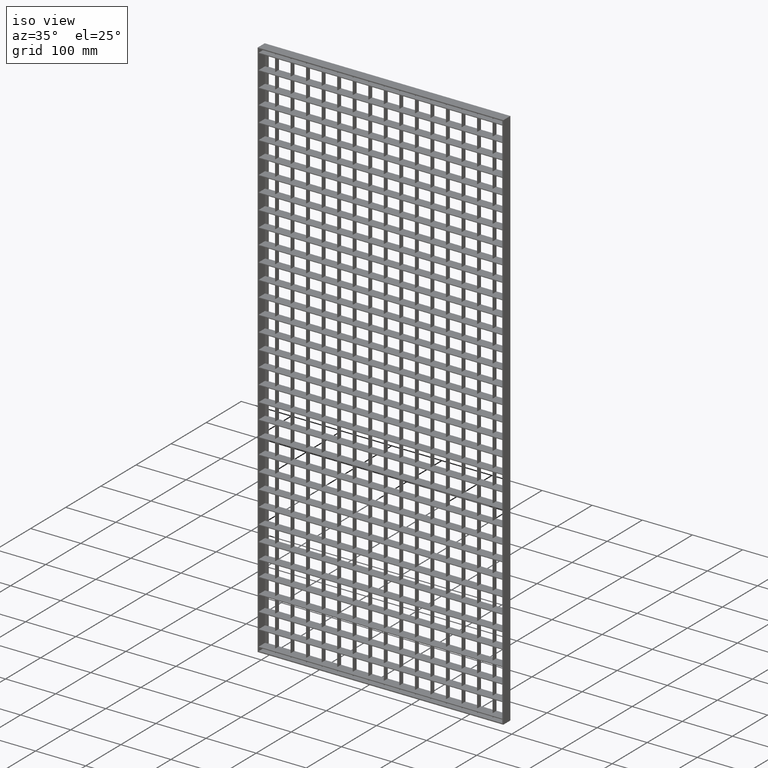
[diagram: clean part render]
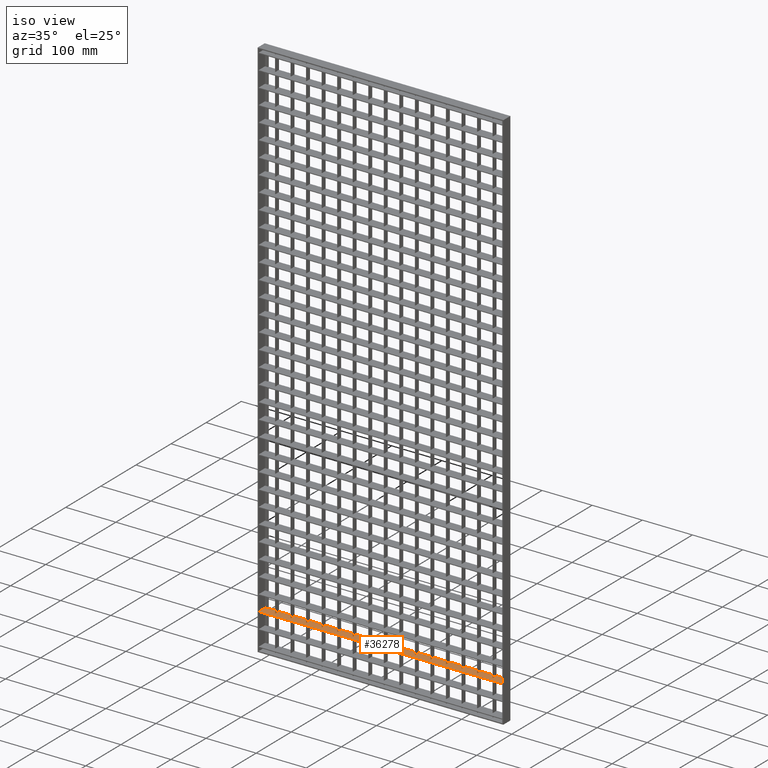
[diagram: same view with one face highlighted and labeled with its STEP entity id]
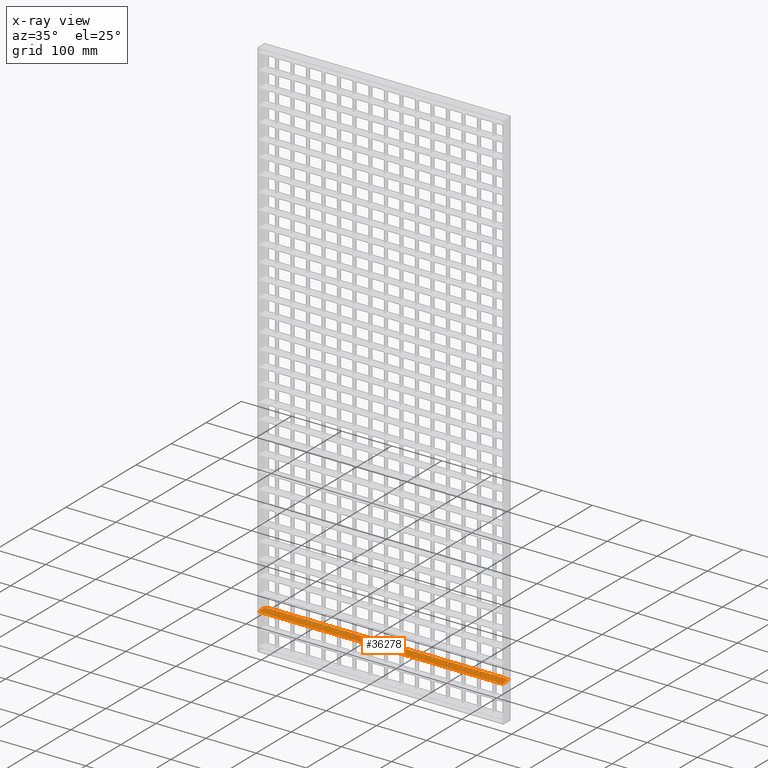
[diagram: x-ray of the same camera — body ghosted, the highlighted face saturated]
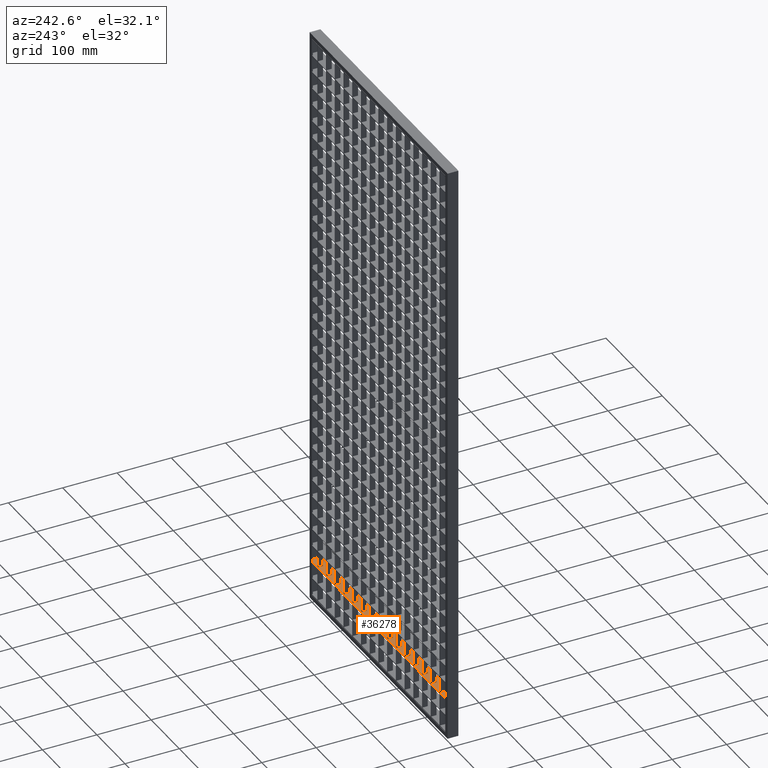
[diagram: same view with one face highlighted and labeled with its STEP entity id]
A machine part, iso view. The second image highlights one B-rep face of the part: STEP entity #36278.
The next image is the same camera in x-ray: the body ghosted, the highlighted face saturated — about 0% of this face is hidden behind the body in this view.
A second angle (auxiliary view) of the same face is appended — the face is thin or edge-on in the first view.
In plain terms, the highlighted planar face has unit normal (0, 0, -1).
Its self-contained STEP definition (entity closure, byte-faithful):
#47 = LINE ( 'NONE', #2167, #4908 ) ;
#529 = VERTEX_POINT ( 'NONE', #3983 ) ;
#575 = DIRECTION ( 'NONE',  ( 0.0000000000000000000, 1.000000000000000000, 0.0000000000000000000 ) ) ;
#647 = EDGE_CURVE ( 'NONE', #66023, #45978, #47502, .T. ) ;
#792 = ORIENTED_EDGE ( 'NONE', *, *, #23037, .F. ) ;
#1019 = VERTEX_POINT ( 'NONE', #63956 ) ;
#1507 = ORIENTED_EDGE ( 'NONE', *, *, #73051, .T. ) ;
#1782 = ORIENTED_EDGE ( 'NONE', *, *, #45331, .T. ) ;
#1841 = CARTESIAN_POINT ( 'NONE',  ( 488.0000000000000000, -9.999999999999847200, -1016.750000000000200 ) ) ;
#1892 = VECTOR ( 'NONE', #20322, 1000.000000000000000 ) ;
#1954 = CARTESIAN_POINT ( 'NONE',  ( 508.0561711201316900, 10.00000000000015500, -1016.750000000000200 ) ) ;
#2028 = DIRECTION ( 'NONE',  ( 0.0000000000000000000, -1.000000000000000000, 0.0000000000000000000 ) ) ;
#2147 = LINE ( 'NONE', #51180, #49362 ) ;
#2167 = CARTESIAN_POINT ( 'NONE',  ( 508.0561711201316900, 10.00000000000015500, -1016.750000000000200 ) ) ;
#2275 = DIRECTION ( 'NONE',  ( -1.000000000000000000, -3.061616997868382600E-016, 0.0000000000000000000 ) ) ;
#2305 = ORIENTED_EDGE ( 'NONE', *, *, #15256, .F. ) ;
#2312 = EDGE_CURVE ( 'NONE', #66023, #3014, #76289, .T. ) ;
#3014 = VERTEX_POINT ( 'NONE', #17201 ) ;
#3084 = VECTOR ( 'NONE', #4418, 1000.000000000000000 ) ;
#3499 = CARTESIAN_POINT ( 'NONE',  ( 307.5000000000000000, -9.999999999999847200, -1016.750000000000200 ) ) ;
#3504 = CARTESIAN_POINT ( 'NONE',  ( 8.000000000000007100, 10.00000000000000200, -1016.750000000000200 ) ) ;
#3670 = LINE ( 'NONE', #33377, #40300 ) ;
#3701 = VECTOR ( 'NONE', #16097, 1000.000000000000000 ) ;
#3827 = CARTESIAN_POINT ( 'NONE',  ( 244.5000000000000000, 2.575921507436452900E-015, -1016.750000000000200 ) ) ;
#3922 = DIRECTION ( 'NONE',  ( 0.0000000000000000000, 1.000000000000000000, 0.0000000000000000000 ) ) ;
#3978 = VERTEX_POINT ( 'NONE', #48672 ) ;
#3983 = CARTESIAN_POINT ( 'NONE',  ( 151.5000000000000000, 10.00000000000000400, -1016.750000000000200 ) ) ;
#4418 = DIRECTION ( 'NONE',  ( 0.0000000000000000000, -1.000000000000000000, 0.0000000000000000000 ) ) ;
#4428 = EDGE_CURVE ( 'NONE', #26187, #13806, #70304, .T. ) ;
#4447 = CARTESIAN_POINT ( 'NONE',  ( 399.4999999999999400, 3.964497668408261800E-015, -1016.750000000000200 ) ) ;
#4469 = ORIENTED_EDGE ( 'NONE', *, *, #47041, .T. ) ;
#4737 = VERTEX_POINT ( 'NONE', #77063 ) ;
#4798 = VERTEX_POINT ( 'NONE', #28491 ) ;
#4842 = VERTEX_POINT ( 'NONE', #72968 ) ;
#4885 = EDGE_CURVE ( 'NONE', #35848, #72989, #47038, .T. ) ;
#4908 = VECTOR ( 'NONE', #14782, 1000.000000000000000 ) ;
#4982 = CARTESIAN_POINT ( 'NONE',  ( 508.0561711201316900, 10.00000000000015500, -1016.750000000000200 ) ) ;
#5101 = CARTESIAN_POINT ( 'NONE',  ( 399.4999999999999400, 10.00000000000012100, -1016.750000000000200 ) ) ;
#5118 = CARTESIAN_POINT ( 'NONE',  ( 152.4999999999999700, -9.999999999999847200, -1016.750000000000200 ) ) ;
#5173 = ORIENTED_EDGE ( 'NONE', *, *, #35917, .T. ) ;
#5180 = CARTESIAN_POINT ( 'NONE',  ( 58.49999999999994300, 2.875720054319178000E-015, -1016.750000000000200 ) ) ;
#5485 = LINE ( 'NONE', #71455, #78804 ) ;
#5492 = LINE ( 'NONE', #74429, #30548 ) ;
#5493 = DIRECTION ( 'NONE',  ( 0.0000000000000000000, 1.000000000000000000, 0.0000000000000000000 ) ) ;
#5738 = DIRECTION ( 'NONE',  ( -1.000000000000000000, -3.061616997868382600E-016, 0.0000000000000000000 ) ) ;
#5740 = VERTEX_POINT ( 'NONE', #7365 ) ;
#5847 = EDGE_CURVE ( 'NONE', #50494, #70728, #27541, .T. ) ;
#5863 = ORIENTED_EDGE ( 'NONE', *, *, #29194, .F. ) ;
#6335 = CARTESIAN_POINT ( 'NONE',  ( 183.5000000000000600, 10.00000000000005500, -1016.750000000000200 ) ) ;
#6500 = CARTESIAN_POINT ( 'NONE',  ( 59.50000000000000000, -9.999999999999847200, -1016.750000000000200 ) ) ;
#6604 = LINE ( 'NONE', #51215, #57693 ) ;
#6652 = CARTESIAN_POINT ( 'NONE',  ( 369.5000000000000600, 2.521952918628941400E-015, -1016.750000000000200 ) ) ;
#6712 = ORIENTED_EDGE ( 'NONE', *, *, #30509, .T. ) ;
#6806 = DIRECTION ( 'NONE',  ( 1.000000000000000000, -3.061616997868381200E-016, 0.0000000000000000000 ) ) ;
#6955 = DIRECTION ( 'NONE',  ( 0.0000000000000000000, 1.000000000000000000, 0.0000000000000000000 ) ) ;
#7078 = LINE ( 'NONE', #28126, #68729 ) ;
#7341 = LINE ( 'NONE', #17234, #42996 ) ;
#7365 = CARTESIAN_POINT ( 'NONE',  ( 306.5000000000000000, 10.00000000000009200, -1016.750000000000200 ) ) ;
#7568 = LINE ( 'NONE', #27009, #71232 ) ;
#7873 = VECTOR ( 'NONE', #15431, 1000.000000000000000 ) ;
#8026 = ORIENTED_EDGE ( 'NONE', *, *, #17497, .T. ) ;
#8042 = LINE ( 'NONE', #12573, #13831 ) ;
#8251 = ORIENTED_EDGE ( 'NONE', *, *, #4885, .T. ) ;
#8373 = VECTOR ( 'NONE', #15385, 1000.000000000000000 ) ;
#8689 = CARTESIAN_POINT ( 'NONE',  ( 244.5000000000000000, -9.999999999999847200, -1016.750000000000200 ) ) ;
#8844 = ORIENTED_EDGE ( 'NONE', *, *, #21264, .F. ) ;
#8872 = VECTOR ( 'NONE', #6806, 1000.000000000000000 ) ;
#9142 = ORIENTED_EDGE ( 'NONE', *, *, #66843, .T. ) ;
#9171 = VERTEX_POINT ( 'NONE', #9367 ) ;
#9367 = CARTESIAN_POINT ( 'NONE',  ( 89.50000000000000000, 10.00000000000000400, -1016.750000000000200 ) ) ;
#9686 = VECTOR ( 'NONE', #50323, 1000.000000000000000 ) ;
#9685 = VECTOR ( 'NONE', #64912, 1000.000000000000000 ) ;
#9751 = VECTOR ( 'NONE', #27449, 1000.000000000000000 ) ;
#9806 = CARTESIAN_POINT ( 'NONE',  ( 275.4999999999999400, 10.00000000000008300, -1016.750000000000200 ) ) ;
#9867 = ORIENTED_EDGE ( 'NONE', *, *, #51762, .T. ) ;
#10002 = VERTEX_POINT ( 'NONE', #15333 ) ;
#10037 = ORIENTED_EDGE ( 'NONE', *, *, #75055, .T. ) ;
#10214 = EDGE_CURVE ( 'NONE', #44588, #39054, #54639, .T. ) ;
#10591 = CARTESIAN_POINT ( 'NONE',  ( 508.0561711201316900, 10.00000000000015500, -1016.750000000000200 ) ) ;
#10777 = ORIENTED_EDGE ( 'NONE', *, *, #33579, .T. ) ;
#10828 = VERTEX_POINT ( 'NONE', #43503 ) ;
#10880 = CARTESIAN_POINT ( 'NONE',  ( 508.0561711201316900, 10.00000000000015500, -1016.750000000000200 ) ) ;
#11002 = VECTOR ( 'NONE', #2275, 1000.000000000000000 ) ;
#11036 = LINE ( 'NONE', #29821, #29368 ) ;
#11109 = EDGE_LOOP ( 'NONE', ( #41373, #59631, #18977, #36443, #8844, #52308, #792, #4469, #34542, #48163, #17365, #78879, #27890, #75272, #41065, #23584, #38828, #52946, #79438, #10777, #61453, #56363, #67982, #53601, #54218, #68046, #44772, #76162, #38912, #23063, #45372, #70309, #27670, #77019, #55527, #66277, #1507, #69324, #10037, #29420, #49395, #9867, #56711, #6712, #1782, #8251, #49460, #16900, #59021, #65242, #50529, #9142, #76958, #40384, #79206, #59903, #79100, #5173, #19547, #30981, #5863, #40531, #2305, #71595, #8026, #53399, #64926, #38168 ) ) ;
#11161 = DIRECTION ( 'NONE',  ( -1.000000000000000000, -3.061616997868382600E-016, 0.0000000000000000000 ) ) ;
#11649 = CARTESIAN_POINT ( 'NONE',  ( 245.5000000000000000, -9.999999999999847200, -1016.750000000000200 ) ) ;
#11761 = VERTEX_POINT ( 'NONE', #65634 ) ;
#12103 = EDGE_CURVE ( 'NONE', #58737, #50494, #34974, .T. ) ;
#12327 = VERTEX_POINT ( 'NONE', #15423 ) ;
#12573 = CARTESIAN_POINT ( 'NONE',  ( 151.4999999999999700, -9.999999999999847200, -1016.750000000000200 ) ) ;
#12657 = EDGE_CURVE ( 'NONE', #45978, #58737, #41619, .T. ) ;
#12856 = VECTOR ( 'NONE', #2028, 1000.000000000000000 ) ;
#12998 = CARTESIAN_POINT ( 'NONE',  ( 2.000000000000003600, -10.00000000000000000, -1016.750000000000200 ) ) ;
#13081 = VECTOR ( 'NONE', #5493, 1000.000000000000000 ) ;
#13384 = VERTEX_POINT ( 'NONE', #19242 ) ;
#13667 = LINE ( 'NONE', #40290, #64798 ) ;
#13806 = VERTEX_POINT ( 'NONE', #42626 ) ;
#13831 = VECTOR ( 'NONE', #43041, 1000.000000000000000 ) ;
#13993 = EDGE_CURVE ( 'NONE', #12327, #55211, #71273, .T. ) ;
#14005 = CARTESIAN_POINT ( 'NONE',  ( 7.999999999999996400, 8.000000000000001800, -1016.750000000000200 ) ) ;
#14044 = EDGE_CURVE ( 'NONE', #37266, #37686, #6604, .T. ) ;
#14136 = CARTESIAN_POINT ( 'NONE',  ( 183.5000000000000000, -9.999999999999847200, -1016.750000000000200 ) ) ;
#14445 = LINE ( 'NONE', #68130, #43370 ) ;
#14782 = DIRECTION ( 'NONE',  ( -1.000000000000000000, -3.061616997868382600E-016, 0.0000000000000000000 ) ) ;
#15256 = EDGE_CURVE ( 'NONE', #60735, #76160, #43040, .T. ) ;
#15277 = VECTOR ( 'NONE', #61649, 1000.000000000000000 ) ;
#15333 = CARTESIAN_POINT ( 'NONE',  ( 338.5000000000000000, 10.00000000000010300, -1016.750000000000200 ) ) ;
#15385 = DIRECTION ( 'NONE',  ( 0.0000000000000000000, 1.000000000000000000, 0.0000000000000000000 ) ) ;
#15423 = CARTESIAN_POINT ( 'NONE',  ( 482.0000000000000600, 8.000000000000001800, -1016.750000000000200 ) ) ;
#15431 = DIRECTION ( 'NONE',  ( 1.000000000000000000, -3.061616997868381200E-016, 0.0000000000000000000 ) ) ;
#15518 = CARTESIAN_POINT ( 'NONE',  ( 59.50000000000005000, 10.00000000000001800, -1016.750000000000200 ) ) ;
#15955 = CARTESIAN_POINT ( 'NONE',  ( 213.5000000000000000, 10.00000000000000400, -1016.750000000000200 ) ) ;
#16097 = DIRECTION ( 'NONE',  ( 0.0000000000000000000, -1.000000000000000000, 0.0000000000000000000 ) ) ;
#16208 = VERTEX_POINT ( 'NONE', #6335 ) ;
#16231 = EDGE_CURVE ( 'NONE', #66929, #49276, #37934, .T. ) ;
#16561 = VERTEX_POINT ( 'NONE', #41563 ) ;
#16765 = LINE ( 'NONE', #39048, #38978 ) ;
#16783 = EDGE_CURVE ( 'NONE', #29604, #62152, #36863, .T. ) ;
#16795 = VECTOR ( 'NONE', #62865, 1000.000000000000000 ) ;
#16900 = ORIENTED_EDGE ( 'NONE', *, *, #37016, .T. ) ;
#16905 = DIRECTION ( 'NONE',  ( -1.000000000000000000, -3.061616997868382600E-016, 0.0000000000000000000 ) ) ;
#17076 = DIRECTION ( 'NONE',  ( 1.000000000000000000, -3.061616997868381200E-016, 0.0000000000000000000 ) ) ;
#17150 = VERTEX_POINT ( 'NONE', #77123 ) ;
#17160 = CARTESIAN_POINT ( 'NONE',  ( 508.0561711201316900, -9.999999999999847200, -1016.750000000000200 ) ) ;
#17201 = CARTESIAN_POINT ( 'NONE',  ( 275.4999999999999400, 3.964497668408261800E-015, -1016.750000000000200 ) ) ;
#17234 = CARTESIAN_POINT ( 'NONE',  ( 182.5000000000000000, -9.999999999999847200, -1016.750000000000200 ) ) ;
#17365 = ORIENTED_EDGE ( 'NONE', *, *, #17493, .F. ) ;
#17493 = EDGE_CURVE ( 'NONE', #68967, #48850, #75325, .T. ) ;
#17497 = EDGE_CURVE ( 'NONE', #1019, #55211, #58790, .T. ) ;
#18129 = VECTOR ( 'NONE', #44971, 1000.000000000000000 ) ;
#18361 = DIRECTION ( 'NONE',  ( 1.000000000000000000, 0.0000000000000000000, 0.0000000000000000000 ) ) ;
#18558 = EDGE_CURVE ( 'NONE', #71690, #20576, #31653, .T. ) ;
#18731 = VECTOR ( 'NONE', #24313, 1000.000000000000000 ) ;
#18806 = LINE ( 'NONE', #65091, #20729 ) ;
#18977 = ORIENTED_EDGE ( 'NONE', *, *, #51773, .F. ) ;
#19134 = LINE ( 'NONE', #57647, #34552 ) ;
#19242 = CARTESIAN_POINT ( 'NONE',  ( 27.49999999999996800, 3.793048216788036000E-015, -1016.750000000000200 ) ) ;
#19307 = VECTOR ( 'NONE', #70713, 1000.000000000000000 ) ;
#19425 = VECTOR ( 'NONE', #36562, 1000.000000000000000 ) ;
#19519 = CARTESIAN_POINT ( 'NONE',  ( 2.000000000000003600, -10.00000000000000000, -1016.750000000000200 ) ) ;
#19522 = LINE ( 'NONE', #3499, #59040 ) ;
#19547 = ORIENTED_EDGE ( 'NONE', *, *, #68988, .T. ) ;
#19653 = DIRECTION ( 'NONE',  ( -1.000000000000000000, -3.061616997868382600E-016, 0.0000000000000000000 ) ) ;
#19777 = CARTESIAN_POINT ( 'NONE',  ( 307.5000000000000000, 2.422020069668045200E-015, -1016.750000000000200 ) ) ;
#19839 = EDGE_CURVE ( 'NONE', #25098, #47969, #64277, .T. ) ;
#19863 = VECTOR ( 'NONE', #47922, 1000.000000000000000 ) ;
#19955 = EDGE_CURVE ( 'NONE', #38211, #76931, #48885, .T. ) ;
#19984 = CARTESIAN_POINT ( 'NONE',  ( 487.9999999999997700, 8.000000000000001800, -1016.750000000000200 ) ) ;
#19987 = DIRECTION ( 'NONE',  ( 0.0000000000000000000, 1.000000000000000000, 0.0000000000000000000 ) ) ;
#20172 = EDGE_CURVE ( 'NONE', #37686, #76314, #50746, .T. ) ;
#20322 = DIRECTION ( 'NONE',  ( -1.000000000000000000, -3.061616997868382600E-016, 0.0000000000000000000 ) ) ;
#20563 = CARTESIAN_POINT ( 'NONE',  ( 28.49999999999997200, -9.999999999999847200, -1016.750000000000200 ) ) ;
#20576 = VERTEX_POINT ( 'NONE', #33357 ) ;
#20729 = VECTOR ( 'NONE', #28154, 1000.000000000000000 ) ;
#20842 = VERTEX_POINT ( 'NONE', #47837 ) ;
#20850 = VERTEX_POINT ( 'NONE', #23065 ) ;
#21137 = CARTESIAN_POINT ( 'NONE',  ( 461.5000000000000000, 10.00000000000014000, -1016.750000000000200 ) ) ;
#21264 = EDGE_CURVE ( 'NONE', #34237, #13806, #61790, .T. ) ;
#21400 = DIRECTION ( 'NONE',  ( -1.000000000000000000, -3.061616997868381200E-016, 0.0000000000000000000 ) ) ;
#21420 = LINE ( 'NONE', #6500, #79295 ) ;
#21503 = EDGE_CURVE ( 'NONE', #16561, #60096, #5485, .T. ) ;
#22210 = CARTESIAN_POINT ( 'NONE',  ( 508.0561711201316900, -1.040834085586084300E-014, -1016.750000000000200 ) ) ;
#23037 = EDGE_CURVE ( 'NONE', #63888, #54212, #16765, .T. ) ;
#23063 = ORIENTED_EDGE ( 'NONE', *, *, #12103, .T. ) ;
#23065 = CARTESIAN_POINT ( 'NONE',  ( 307.5000000000000000, 10.00000000000009400, -1016.750000000000200 ) ) ;
#23376 = CARTESIAN_POINT ( 'NONE',  ( 508.0561711201316900, -2.081668171172168500E-014, -1016.750000000000200 ) ) ;
#23401 = EDGE_CURVE ( 'NONE', #47751, #529, #8042, .T. ) ;
#23536 = CARTESIAN_POINT ( 'NONE',  ( 213.4999999999999700, 3.493249669905298200E-015, -1016.750000000000200 ) ) ;
#23584 = ORIENTED_EDGE ( 'NONE', *, *, #37132, .T. ) ;
#23721 = CARTESIAN_POINT ( 'NONE',  ( 27.49999999999999600, 10.00000000000000400, -1016.750000000000200 ) ) ;
#23877 = EDGE_CURVE ( 'NONE', #39054, #66929, #13667, .T. ) ;
#24126 = EDGE_CURVE ( 'NONE', #48850, #16561, #54174, .T. ) ;
#24236 = CARTESIAN_POINT ( 'NONE',  ( 58.50000000000000000, 10.00000000000000400, -1016.750000000000200 ) ) ;
#24313 = DIRECTION ( 'NONE',  ( -1.000000000000000000, -3.061616997868381200E-016, 0.0000000000000000000 ) ) ;
#24453 = EDGE_CURVE ( 'NONE', #25903, #34955, #52186, .T. ) ;
#24886 = CARTESIAN_POINT ( 'NONE',  ( 338.5000000000000000, -9.999999999999847200, -1016.750000000000200 ) ) ;
#25098 = VERTEX_POINT ( 'NONE', #23721 ) ;
#25641 = CARTESIAN_POINT ( 'NONE',  ( 245.5000000000000000, 10.00000000000007500, -1016.750000000000200 ) ) ;
#25667 = DIRECTION ( 'NONE',  ( -1.000000000000000000, -3.061616997868381200E-016, 0.0000000000000000000 ) ) ;
#25903 = VERTEX_POINT ( 'NONE', #6652 ) ;
#26004 = LINE ( 'NONE', #51641, #31827 ) ;
#26187 = VERTEX_POINT ( 'NONE', #21137 ) ;
#26300 = LINE ( 'NONE', #79049, #70672 ) ;
#26422 = DIRECTION ( 'NONE',  ( -1.000000000000000000, -3.061616997868382600E-016, 0.0000000000000000000 ) ) ;
#26593 = EDGE_CURVE ( 'NONE', #20842, #71690, #3670, .T. ) ;
#26657 = CARTESIAN_POINT ( 'NONE',  ( 245.5000000000000000, 3.469446951953614200E-015, -1016.750000000000200 ) ) ;
#26743 = VERTEX_POINT ( 'NONE', #47086 ) ;
#27009 = CARTESIAN_POINT ( 'NONE',  ( 508.0561711201316900, -3.989863994746656300E-014, -1016.750000000000200 ) ) ;
#27113 = CARTESIAN_POINT ( 'NONE',  ( 89.49999999999997200, 3.693115367827127200E-015, -1016.750000000000200 ) ) ;
#27449 = DIRECTION ( 'NONE',  ( 0.0000000000000000000, 1.000000000000000000, 0.0000000000000000000 ) ) ;
#27529 = CARTESIAN_POINT ( 'NONE',  ( 275.4999999999999400, -9.999999999999847200, -1016.750000000000200 ) ) ;
#27541 = LINE ( 'NONE', #8689, #78697 ) ;
#27670 = ORIENTED_EDGE ( 'NONE', *, *, #32757, .T. ) ;
#27746 = DIRECTION ( 'NONE',  ( 0.0000000000000000000, 1.000000000000000000, 0.0000000000000000000 ) ) ;
#27890 = ORIENTED_EDGE ( 'NONE', *, *, #24453, .F. ) ;
#28096 = LINE ( 'NONE', #35867, #76406 ) ;
#28126 = CARTESIAN_POINT ( 'NONE',  ( 508.0561711201316900, 1.318389841742373400E-013, -1016.750000000000200 ) ) ;
#28154 = DIRECTION ( 'NONE',  ( 0.0000000000000000000, -1.000000000000000000, 0.0000000000000000000 ) ) ;
#28491 = CARTESIAN_POINT ( 'NONE',  ( 121.5000000000000000, 10.00000000000003700, -1016.750000000000200 ) ) ;
#29194 = EDGE_CURVE ( 'NONE', #4737, #47969, #76539, .T. ) ;
#29368 = VECTOR ( 'NONE', #60753, 1000.000000000000000 ) ;
#29420 = ORIENTED_EDGE ( 'NONE', *, *, #14044, .T. ) ;
#29446 = VECTOR ( 'NONE', #66254, 1000.000000000000000 ) ;
#29601 = LINE ( 'NONE', #24886, #35405 ) ;
#29604 = VERTEX_POINT ( 'NONE', #54646 ) ;
#29752 = VERTEX_POINT ( 'NONE', #27113 ) ;
#29821 = CARTESIAN_POINT ( 'NONE',  ( 508.0561711201316900, 10.00000000000015500, -1016.750000000000200 ) ) ;
#30109 = CARTESIAN_POINT ( 'NONE',  ( 152.5000000000000300, 10.00000000000004600, -1016.750000000000200 ) ) ;
#30302 = EDGE_CURVE ( 'NONE', #75623, #26743, #34826, .T. ) ;
#30509 = EDGE_CURVE ( 'NONE', #529, #4798, #47, .T. ) ;
#30548 = VECTOR ( 'NONE', #575, 1000.000000000000000 ) ;
#30716 = AXIS2_PLACEMENT_3D ( 'NONE', #17160, #53830, #36848 ) ;
#30789 = LINE ( 'NONE', #44598, #1892 ) ;
#30973 = LINE ( 'NONE', #35251, #35759 ) ;
#30981 = ORIENTED_EDGE ( 'NONE', *, *, #19839, .T. ) ;
#31039 = CARTESIAN_POINT ( 'NONE',  ( 508.0561711201316900, -5.898059818321144100E-014, -1016.750000000000200 ) ) ;
#31495 = VECTOR ( 'NONE', #26422, 1000.000000000000000 ) ;
#31653 = LINE ( 'NONE', #43349, #15277 ) ;
#31733 = CARTESIAN_POINT ( 'NONE',  ( 58.50000000000000000, -9.999999999999847200, -1016.750000000000200 ) ) ;
#31775 = EDGE_CURVE ( 'NONE', #3014, #75623, #52276, .T. ) ;
#31827 = VECTOR ( 'NONE', #21400, 1000.000000000000000 ) ;
#32743 = DIRECTION ( 'NONE',  ( 0.0000000000000000000, -1.000000000000000000, 0.0000000000000000000 ) ) ;
#32757 = EDGE_CURVE ( 'NONE', #43764, #65768, #14445, .T. ) ;
#32798 = CARTESIAN_POINT ( 'NONE',  ( 399.4999999999999400, -9.999999999999847200, -1016.750000000000200 ) ) ;
#33205 = LINE ( 'NONE', #56921, #16795 ) ;
#33222 = EDGE_CURVE ( 'NONE', #70728, #43764, #74280, .T. ) ;
#33357 = CARTESIAN_POINT ( 'NONE',  ( 338.5000000000000000, 3.339348232136890500E-015, -1016.750000000000200 ) ) ;
#33377 = CARTESIAN_POINT ( 'NONE',  ( 337.5000000000000000, -9.999999999999847200, -1016.750000000000200 ) ) ;
#33480 = CARTESIAN_POINT ( 'NONE',  ( 368.5000000000000600, -9.999999999999847200, -1016.750000000000200 ) ) ;
#33486 = CARTESIAN_POINT ( 'NONE',  ( 368.5000000000000600, 3.964497668408261800E-015, -1016.750000000000200 ) ) ;
#33579 = EDGE_CURVE ( 'NONE', #20842, #20850, #30789, .T. ) ;
#34237 = VERTEX_POINT ( 'NONE', #39697 ) ;
#34542 = ORIENTED_EDGE ( 'NONE', *, *, #21503, .F. ) ;
#34549 = CARTESIAN_POINT ( 'NONE',  ( 400.4999999999999400, 10.00000000000012100, -1016.750000000000200 ) ) ;
#34552 = VECTOR ( 'NONE', #19653, 1000.000000000000000 ) ;
#34597 = DIRECTION ( 'NONE',  ( -1.000000000000000000, -3.061616997868381200E-016, 0.0000000000000000000 ) ) ;
#34679 = EDGE_CURVE ( 'NONE', #10828, #62345, #5492, .T. ) ;
#34826 = LINE ( 'NONE', #46490, #9751 ) ;
#34955 = VERTEX_POINT ( 'NONE', #70888 ) ;
#34974 = LINE ( 'NONE', #55885, #50422 ) ;
#35251 = CARTESIAN_POINT ( 'NONE',  ( 508.0561711201316900, 1.405126015541213700E-013, -1016.750000000000200 ) ) ;
#35405 = VECTOR ( 'NONE', #19987, 1000.000000000000000 ) ;
#35759 = VECTOR ( 'NONE', #47615, 1000.000000000000000 ) ;
#35848 = VERTEX_POINT ( 'NONE', #43906 ) ;
#35867 = CARTESIAN_POINT ( 'NONE',  ( 508.0561711201316900, 10.00000000000015500, -1016.750000000000200 ) ) ;
#35917 = EDGE_CURVE ( 'NONE', #49276, #13384, #2147, .T. ) ;
#36159 = EDGE_CURVE ( 'NONE', #48079, #62345, #46380, .T. ) ;
#36235 = LINE ( 'NONE', #79867, #13081 ) ;
#36278 = ADVANCED_FACE ( 'NONE', ( #76399 ), #78392, .F. ) ;
#36443 = ORIENTED_EDGE ( 'NONE', *, *, #4428, .T. ) ;
#36459 = LINE ( 'NONE', #64886, #3701 ) ;
#36539 = EDGE_CURVE ( 'NONE', #54212, #34237, #74462, .T. ) ;
#36546 = EDGE_CURVE ( 'NONE', #76160, #4737, #47332, .T. ) ;
#36562 = DIRECTION ( 'NONE',  ( 0.0000000000000000000, 1.000000000000000000, 0.0000000000000000000 ) ) ;
#36848 = DIRECTION ( 'NONE',  ( -1.000000000000000000, 0.0000000000000000000, -0.0000000000000000000 ) ) ;
#36863 = LINE ( 'NONE', #31039, #71594 ) ;
#37016 = EDGE_CURVE ( 'NONE', #11761, #17150, #52167, .T. ) ;
#37132 = EDGE_CURVE ( 'NONE', #46543, #10002, #73367, .T. ) ;
#37248 = VECTOR ( 'NONE', #62631, 1000.000000000000000 ) ;
#37266 = VERTEX_POINT ( 'NONE', #69000 ) ;
#37443 = VECTOR ( 'NONE', #32743, 1000.000000000000000 ) ;
#37558 = CARTESIAN_POINT ( 'NONE',  ( 508.0561711201316900, -2.949029909160572100E-014, -1016.750000000000200 ) ) ;
#37686 = VERTEX_POINT ( 'NONE', #30109 ) ;
#37895 = CARTESIAN_POINT ( 'NONE',  ( 430.5000000000000000, 10.00000000000013000, -1016.750000000000200 ) ) ;
#37934 = LINE ( 'NONE', #20563, #12856 ) ;
#38124 = LINE ( 'NONE', #54926, #29446 ) ;
#38168 = ORIENTED_EDGE ( 'NONE', *, *, #36159, .T. ) ;
#38211 = VERTEX_POINT ( 'NONE', #23536 ) ;
#38456 = VECTOR ( 'NONE', #18361, 1000.000000000000000 ) ;
#38828 = ORIENTED_EDGE ( 'NONE', *, *, #73530, .F. ) ;
#38912 = ORIENTED_EDGE ( 'NONE', *, *, #12657, .T. ) ;
#38978 = VECTOR ( 'NONE', #44950, 1000.000000000000000 ) ;
#39048 = CARTESIAN_POINT ( 'NONE',  ( 430.5000000000000000, -9.999999999999847200, -1016.750000000000200 ) ) ;
#39054 = VERTEX_POINT ( 'NONE', #24236 ) ;
#39697 = CARTESIAN_POINT ( 'NONE',  ( 431.5000000000000000, 2.621885767589871400E-015, -1016.750000000000200 ) ) ;
#40290 = CARTESIAN_POINT ( 'NONE',  ( 508.0561711201316900, 10.00000000000015500, -1016.750000000000200 ) ) ;
#40300 = VECTOR ( 'NONE', #77080, 1000.000000000000000 ) ;
#40384 = ORIENTED_EDGE ( 'NONE', *, *, #47944, .T. ) ;
#40531 = ORIENTED_EDGE ( 'NONE', *, *, #36546, .F. ) ;
#40920 = EDGE_CURVE ( 'NONE', #69932, #73197, #21420, .T. ) ;
#41065 = ORIENTED_EDGE ( 'NONE', *, *, #55286, .F. ) ;
#41171 = CARTESIAN_POINT ( 'NONE',  ( 508.0561711201316900, 1.214306433183765000E-013, -1016.750000000000200 ) ) ;
#41373 = ORIENTED_EDGE ( 'NONE', *, *, #34679, .F. ) ;
#41563 = CARTESIAN_POINT ( 'NONE',  ( 400.4999999999999400, 3.439281081097823800E-015, -1016.750000000000200 ) ) ;
#41619 = LINE ( 'NONE', #11649, #3084 ) ;
#42049 = CARTESIAN_POINT ( 'NONE',  ( 244.5000000000000000, 10.00000000000000400, -1016.750000000000200 ) ) ;
#42266 = LINE ( 'NONE', #56584, #18129 ) ;
#42400 = VECTOR ( 'NONE', #6955, 1000.000000000000000 ) ;
#42451 = DIRECTION ( 'NONE',  ( -1.000000000000000000, -3.061616997868382600E-016, 0.0000000000000000000 ) ) ;
#42626 = CARTESIAN_POINT ( 'NONE',  ( 431.5000000000000000, 10.00000000000013000, -1016.750000000000200 ) ) ;
#42737 = VECTOR ( 'NONE', #42451, 1000.000000000000000 ) ;
#42796 = DIRECTION ( 'NONE',  ( 1.000000000000000000, -3.061616997868381200E-016, 0.0000000000000000000 ) ) ;
#42914 = VECTOR ( 'NONE', #17076, 1000.000000000000000 ) ;
#42996 = VECTOR ( 'NONE', #66049, 1000.000000000000000 ) ;
#43040 = LINE ( 'NONE', #19519, #37248 ) ;
#43041 = DIRECTION ( 'NONE',  ( 0.0000000000000000000, 1.000000000000000000, 0.0000000000000000000 ) ) ;
#43349 = CARTESIAN_POINT ( 'NONE',  ( 508.0561711201316900, -4.857225732735059900E-014, -1016.750000000000200 ) ) ;
#43370 = VECTOR ( 'NONE', #68643, 1000.000000000000000 ) ;
#43503 = CARTESIAN_POINT ( 'NONE',  ( 462.5000000000000000, 3.539213930058723100E-015, -1016.750000000000200 ) ) ;
#43687 = CARTESIAN_POINT ( 'NONE',  ( 244.9999999999998900, 8.000000000000001800, -1016.750000000000200 ) ) ;
#43698 = VECTOR ( 'NONE', #44970, 1000.000000000000000 ) ;
#43764 = VERTEX_POINT ( 'NONE', #46500 ) ;
#43906 = CARTESIAN_POINT ( 'NONE',  ( 121.5000000000000000, 3.469446951953614200E-015, -1016.750000000000200 ) ) ;
#44396 = EDGE_CURVE ( 'NONE', #79946, #25903, #7568, .T. ) ;
#44588 = VERTEX_POINT ( 'NONE', #5180 ) ;
#44598 = CARTESIAN_POINT ( 'NONE',  ( 508.0561711201316900, 10.00000000000015500, -1016.750000000000200 ) ) ;
#44772 = ORIENTED_EDGE ( 'NONE', *, *, #2312, .F. ) ;
#44950 = DIRECTION ( 'NONE',  ( 0.0000000000000000000, -1.000000000000000000, 0.0000000000000000000 ) ) ;
#44962 = LINE ( 'NONE', #68116, #75890 ) ;
#44970 = DIRECTION ( 'NONE',  ( 0.0000000000000000000, 1.000000000000000000, 0.0000000000000000000 ) ) ;
#44971 = DIRECTION ( 'NONE',  ( 0.0000000000000000000, -1.000000000000000000, 0.0000000000000000000 ) ) ;
#45331 = EDGE_CURVE ( 'NONE', #4798, #35848, #44962, .T. ) ;
#45372 = ORIENTED_EDGE ( 'NONE', *, *, #5847, .T. ) ;
#45383 = CARTESIAN_POINT ( 'NONE',  ( 337.5000000000000000, 3.964497668408261800E-015, -1016.750000000000200 ) ) ;
#45418 = CARTESIAN_POINT ( 'NONE',  ( 2.000000000000003600, 8.000000000000001800, -1016.750000000000200 ) ) ;
#45978 = VERTEX_POINT ( 'NONE', #25641 ) ;
#46380 = LINE ( 'NONE', #47611, #53140 ) ;
#46490 = CARTESIAN_POINT ( 'NONE',  ( 276.4999999999999400, -9.999999999999847200, -1016.750000000000200 ) ) ;
#46500 = CARTESIAN_POINT ( 'NONE',  ( 214.5000000000000300, 10.00000000000006400, -1016.750000000000200 ) ) ;
#46543 = VERTEX_POINT ( 'NONE', #50013 ) ;
#46782 = EDGE_CURVE ( 'NONE', #3978, #29752, #7078, .T. ) ;
#47038 = LINE ( 'NONE', #41171, #51865 ) ;
#47041 = EDGE_CURVE ( 'NONE', #63888, #60096, #71675, .T. ) ;
#47086 = CARTESIAN_POINT ( 'NONE',  ( 276.4999999999999400, 10.00000000000008300, -1016.750000000000200 ) ) ;
#47332 = LINE ( 'NONE', #60028, #56998 ) ;
#47502 = LINE ( 'NONE', #78600, #42737 ) ;
#47513 = DIRECTION ( 'NONE',  ( -1.000000000000000000, -3.061616997868382600E-016, 0.0000000000000000000 ) ) ;
#47611 = CARTESIAN_POINT ( 'NONE',  ( 508.0561711201316900, 10.00000000000015500, -1016.750000000000200 ) ) ;
#47615 = DIRECTION ( 'NONE',  ( -1.000000000000000000, -3.061616997868381200E-016, 0.0000000000000000000 ) ) ;
#47751 = VERTEX_POINT ( 'NONE', #69267 ) ;
#47837 = CARTESIAN_POINT ( 'NONE',  ( 337.5000000000000000, 10.00000000000010300, -1016.750000000000200 ) ) ;
#47839 = EDGE_CURVE ( 'NONE', #65768, #38211, #76328, .T. ) ;
#47922 = DIRECTION ( 'NONE',  ( 0.0000000000000000000, -1.000000000000000000, 0.0000000000000000000 ) ) ;
#47944 = EDGE_CURVE ( 'NONE', #73197, #44588, #30973, .T. ) ;
#47969 = VERTEX_POINT ( 'NONE', #3504 ) ;
#48079 = VERTEX_POINT ( 'NONE', #65971 ) ;
#48163 = ORIENTED_EDGE ( 'NONE', *, *, #24126, .F. ) ;
#48672 = CARTESIAN_POINT ( 'NONE',  ( 90.50000000000002800, 3.469446951953614200E-015, -1016.750000000000200 ) ) ;
#48850 = VERTEX_POINT ( 'NONE', #4447 ) ;
#48885 = LINE ( 'NONE', #64422, #8373 ) ;
#49276 = VERTEX_POINT ( 'NONE', #75561 ) ;
#49362 = VECTOR ( 'NONE', #75484, 1000.000000000000000 ) ;
#49395 = ORIENTED_EDGE ( 'NONE', *, *, #20172, .T. ) ;
#49460 = ORIENTED_EDGE ( 'NONE', *, *, #63096, .T. ) ;
#49462 = VECTOR ( 'NONE', #74788, 1000.000000000000000 ) ;
#50013 = CARTESIAN_POINT ( 'NONE',  ( 368.5000000000000600, 10.00000000000011200, -1016.750000000000200 ) ) ;
#50088 = EDGE_CURVE ( 'NONE', #48079, #12327, #36459, .T. ) ;
#50323 = DIRECTION ( 'NONE',  ( 0.0000000000000000000, -1.000000000000000000, 0.0000000000000000000 ) ) ;
#50422 = VECTOR ( 'NONE', #25667, 1000.000000000000000 ) ;
#50494 = VERTEX_POINT ( 'NONE', #3827 ) ;
#50529 = ORIENTED_EDGE ( 'NONE', *, *, #53543, .T. ) ;
#50678 = DIRECTION ( 'NONE',  ( -1.000000000000000000, -3.061616997868382600E-016, 0.0000000000000000000 ) ) ;
#50746 = LINE ( 'NONE', #5118, #19863 ) ;
#50948 = VECTOR ( 'NONE', #47513, 1000.000000000000000 ) ;
#51180 = CARTESIAN_POINT ( 'NONE',  ( 508.0561711201316900, 1.509209424099822200E-013, -1016.750000000000200 ) ) ;
#51215 = CARTESIAN_POINT ( 'NONE',  ( 508.0561711201316900, 10.00000000000015500, -1016.750000000000200 ) ) ;
#51550 = DIRECTION ( 'NONE',  ( 0.0000000000000000000, 1.000000000000000000, 0.0000000000000000000 ) ) ;
#51641 = CARTESIAN_POINT ( 'NONE',  ( 508.0561711201316900, 1.023486850826316200E-013, -1016.750000000000200 ) ) ;
#51762 = EDGE_CURVE ( 'NONE', #76314, #47751, #75707, .T. ) ;
#51773 = EDGE_CURVE ( 'NONE', #26187, #4842, #33205, .T. ) ;
#51865 = VECTOR ( 'NONE', #59460, 1000.000000000000000 ) ;
#51885 = EDGE_CURVE ( 'NONE', #1019, #60735, #73673, .T. ) ;
#51925 = CARTESIAN_POINT ( 'NONE',  ( 214.5000000000000300, 3.469446951953614200E-015, -1016.750000000000200 ) ) ;
#52100 = CARTESIAN_POINT ( 'NONE',  ( 508.0561711201316900, -6.765421556309547700E-014, -1016.750000000000200 ) ) ;
#52167 = LINE ( 'NONE', #78066, #55013 ) ;
#52186 = LINE ( 'NONE', #58314, #70530 ) ;
#52276 = LINE ( 'NONE', #52100, #7873 ) ;
#52308 = ORIENTED_EDGE ( 'NONE', *, *, #36539, .F. ) ;
#52323 = LINE ( 'NONE', #33480, #75479 ) ;
#52946 = ORIENTED_EDGE ( 'NONE', *, *, #18558, .F. ) ;
#52987 = CARTESIAN_POINT ( 'NONE',  ( 152.4999999999999700, 3.469446951953614200E-015, -1016.750000000000200 ) ) ;
#53028 = CARTESIAN_POINT ( 'NONE',  ( 430.5000000000000000, 3.964497668408261800E-015, -1016.750000000000200 ) ) ;
#53140 = VECTOR ( 'NONE', #16905, 1000.000000000000000 ) ;
#53268 = EDGE_CURVE ( 'NONE', #5740, #29604, #18806, .T. ) ;
#53399 = ORIENTED_EDGE ( 'NONE', *, *, #13993, .F. ) ;
#53543 = EDGE_CURVE ( 'NONE', #29752, #9171, #36235, .T. ) ;
#53601 = ORIENTED_EDGE ( 'NONE', *, *, #55518, .T. ) ;
#53830 = DIRECTION ( 'NONE',  ( 0.0000000000000000000, 0.0000000000000000000, -1.000000000000000000 ) ) ;
#54010 = DIRECTION ( 'NONE',  ( -1.000000000000000000, -3.061616997868382600E-016, 0.0000000000000000000 ) ) ;
#54174 = LINE ( 'NONE', #37558, #8872 ) ;
#54212 = VERTEX_POINT ( 'NONE', #53028 ) ;
#54218 = ORIENTED_EDGE ( 'NONE', *, *, #30302, .F. ) ;
#54639 = LINE ( 'NONE', #31733, #59414 ) ;
#54646 = CARTESIAN_POINT ( 'NONE',  ( 306.5000000000000000, 3.964497668408261800E-015, -1016.750000000000200 ) ) ;
#54874 = CARTESIAN_POINT ( 'NONE',  ( 120.5000000000000000, -9.999999999999847200, -1016.750000000000200 ) ) ;
#54926 = CARTESIAN_POINT ( 'NONE',  ( 27.49999999999996800, -9.999999999999847200, -1016.750000000000200 ) ) ;
#55013 = VECTOR ( 'NONE', #65375, 1000.000000000000000 ) ;
#55050 = EDGE_CURVE ( 'NONE', #68967, #34955, #26300, .T. ) ;
#55211 = VERTEX_POINT ( 'NONE', #19984 ) ;
#55286 = EDGE_CURVE ( 'NONE', #46543, #79946, #52323, .T. ) ;
#55518 = EDGE_CURVE ( 'NONE', #5740, #26743, #28096, .T. ) ;
#55527 = ORIENTED_EDGE ( 'NONE', *, *, #19955, .T. ) ;
#55553 = DIRECTION ( 'NONE',  ( 1.000000000000000000, -3.061616997868381200E-016, 0.0000000000000000000 ) ) ;
#55885 = CARTESIAN_POINT ( 'NONE',  ( 508.0561711201316900, 8.326672684688674100E-014, -1016.750000000000200 ) ) ;
#56363 = ORIENTED_EDGE ( 'NONE', *, *, #16783, .F. ) ;
#56584 = CARTESIAN_POINT ( 'NONE',  ( 90.50000000000002800, -9.999999999999847200, -1016.750000000000200 ) ) ;
#56711 = ORIENTED_EDGE ( 'NONE', *, *, #23401, .T. ) ;
#56920 = VECTOR ( 'NONE', #11161, 1000.000000000000000 ) ;
#56921 = CARTESIAN_POINT ( 'NONE',  ( 461.5000000000000000, -9.999999999999847200, -1016.750000000000200 ) ) ;
#56998 = VECTOR ( 'NONE', #73281, 1000.000000000000000 ) ;
#57474 = DIRECTION ( 'NONE',  ( 1.000000000000000000, -3.061616997868381200E-016, 0.0000000000000000000 ) ) ;
#57647 = CARTESIAN_POINT ( 'NONE',  ( 508.0561711201316900, 10.00000000000015500, -1016.750000000000200 ) ) ;
#57693 = VECTOR ( 'NONE', #50678, 1000.000000000000000 ) ;
#57998 = VECTOR ( 'NONE', #42796, 1000.000000000000000 ) ;
#58314 = CARTESIAN_POINT ( 'NONE',  ( 369.5000000000000600, -9.999999999999847200, -1016.750000000000200 ) ) ;
#58737 = VERTEX_POINT ( 'NONE', #26657 ) ;
#58790 = LINE ( 'NONE', #1841, #42400 ) ;
#59021 = ORIENTED_EDGE ( 'NONE', *, *, #66851, .T. ) ;
#59040 = VECTOR ( 'NONE', #63842, 1000.000000000000000 ) ;
#59414 = VECTOR ( 'NONE', #75430, 1000.000000000000000 ) ;
#59460 = DIRECTION ( 'NONE',  ( -1.000000000000000000, -3.061616997868381200E-016, 0.0000000000000000000 ) ) ;
#59631 = ORIENTED_EDGE ( 'NONE', *, *, #74470, .F. ) ;
#59659 = VECTOR ( 'NONE', #54010, 1000.000000000000000 ) ;
#59855 = VECTOR ( 'NONE', #27746, 1000.000000000000000 ) ;
#59903 = ORIENTED_EDGE ( 'NONE', *, *, #23877, .T. ) ;
#60028 = CARTESIAN_POINT ( 'NONE',  ( 2.000000000000003600, 8.000000000000001800, -1016.750000000000200 ) ) ;
#60096 = VERTEX_POINT ( 'NONE', #34549 ) ;
#60608 = DIRECTION ( 'NONE',  ( -1.000000000000000000, -3.061616997868382600E-016, 0.0000000000000000000 ) ) ;
#60735 = VERTEX_POINT ( 'NONE', #12998 ) ;
#60753 = DIRECTION ( 'NONE',  ( -1.000000000000000000, -3.061616997868382600E-016, 0.0000000000000000000 ) ) ;
#61189 = LINE ( 'NONE', #22210, #42914 ) ;
#61453 = ORIENTED_EDGE ( 'NONE', *, *, #71154, .F. ) ;
#61649 = DIRECTION ( 'NONE',  ( 1.000000000000000000, -3.061616997868381200E-016, 0.0000000000000000000 ) ) ;
#61790 = LINE ( 'NONE', #65749, #59855 ) ;
#61850 = EDGE_CURVE ( 'NONE', #76931, #16208, #11036, .T. ) ;
#62152 = VERTEX_POINT ( 'NONE', #19777 ) ;
#62345 = VERTEX_POINT ( 'NONE', #66107 ) ;
#62631 = DIRECTION ( 'NONE',  ( 0.0000000000000000000, 1.000000000000000000, 0.0000000000000000000 ) ) ;
#62865 = DIRECTION ( 'NONE',  ( 0.0000000000000000000, -1.000000000000000000, 0.0000000000000000000 ) ) ;
#63096 = EDGE_CURVE ( 'NONE', #72989, #11761, #78338, .T. ) ;
#63137 = CARTESIAN_POINT ( 'NONE',  ( 508.0561711201316900, 10.00000000000015500, -1016.750000000000200 ) ) ;
#63406 = CARTESIAN_POINT ( 'NONE',  ( 508.0561711201316900, -9.999999999999847200, -1016.750000000000200 ) ) ;
#63842 = DIRECTION ( 'NONE',  ( 0.0000000000000000000, 1.000000000000000000, 0.0000000000000000000 ) ) ;
#63888 = VERTEX_POINT ( 'NONE', #37895 ) ;
#63956 = CARTESIAN_POINT ( 'NONE',  ( 488.0000000000000000, -10.00000000000000400, -1016.750000000000200 ) ) ;
#64277 = LINE ( 'NONE', #1954, #31495 ) ;
#64364 = CARTESIAN_POINT ( 'NONE',  ( 508.0561711201316900, 9.367506770274758300E-014, -1016.750000000000200 ) ) ;
#64422 = CARTESIAN_POINT ( 'NONE',  ( 213.5000000000000300, -9.999999999999847200, -1016.750000000000200 ) ) ;
#64798 = VECTOR ( 'NONE', #65603, 1000.000000000000000 ) ;
#64886 = CARTESIAN_POINT ( 'NONE',  ( 482.0000000000000600, 8.000000000000001800, -1016.750000000000200 ) ) ;
#64912 = DIRECTION ( 'NONE',  ( -1.000000000000000000, -3.061616997868381200E-016, 0.0000000000000000000 ) ) ;
#64926 = ORIENTED_EDGE ( 'NONE', *, *, #50088, .F. ) ;
#65091 = CARTESIAN_POINT ( 'NONE',  ( 306.5000000000000000, -9.999999999999847200, -1016.750000000000200 ) ) ;
#65242 = ORIENTED_EDGE ( 'NONE', *, *, #46782, .T. ) ;
#65375 = DIRECTION ( 'NONE',  ( -1.000000000000000000, -3.061616997868382600E-016, 0.0000000000000000000 ) ) ;
#65603 = DIRECTION ( 'NONE',  ( -1.000000000000000000, -3.061616997868382600E-016, 0.0000000000000000000 ) ) ;
#65634 = CARTESIAN_POINT ( 'NONE',  ( 120.5000000000000000, 10.00000000000000400, -1016.750000000000200 ) ) ;
#65749 = CARTESIAN_POINT ( 'NONE',  ( 431.5000000000000000, -9.999999999999847200, -1016.750000000000200 ) ) ;
#65768 = VERTEX_POINT ( 'NONE', #51925 ) ;
#65902 = EDGE_CURVE ( 'NONE', #78265, #71518, #26004, .T. ) ;
#65971 = CARTESIAN_POINT ( 'NONE',  ( 482.0000000000002800, 10.00000000000000200, -1016.750000000000200 ) ) ;
#66023 = VERTEX_POINT ( 'NONE', #9806 ) ;
#66049 = DIRECTION ( 'NONE',  ( 0.0000000000000000000, 1.000000000000000000, 0.0000000000000000000 ) ) ;
#66107 = CARTESIAN_POINT ( 'NONE',  ( 462.5000000000000000, 10.00000000000014000, -1016.750000000000200 ) ) ;
#66254 = DIRECTION ( 'NONE',  ( 0.0000000000000000000, 1.000000000000000000, 0.0000000000000000000 ) ) ;
#66277 = ORIENTED_EDGE ( 'NONE', *, *, #61850, .T. ) ;
#66338 = LINE ( 'NONE', #14136, #37443 ) ;
#66843 = EDGE_CURVE ( 'NONE', #9171, #69932, #19134, .T. ) ;
#66851 = EDGE_CURVE ( 'NONE', #17150, #3978, #42266, .T. ) ;
#66929 = VERTEX_POINT ( 'NONE', #76835 ) ;
#67186 = CARTESIAN_POINT ( 'NONE',  ( 508.0561711201316900, 1.127570259384924600E-013, -1016.750000000000200 ) ) ;
#67977 = DIRECTION ( 'NONE',  ( 0.0000000000000000000, -1.000000000000000000, 0.0000000000000000000 ) ) ;
#67982 = ORIENTED_EDGE ( 'NONE', *, *, #53268, .F. ) ;
#68046 = ORIENTED_EDGE ( 'NONE', *, *, #31775, .F. ) ;
#68116 = CARTESIAN_POINT ( 'NONE',  ( 121.5000000000000000, -9.999999999999847200, -1016.750000000000200 ) ) ;
#68130 = CARTESIAN_POINT ( 'NONE',  ( 214.5000000000000300, -9.999999999999847200, -1016.750000000000200 ) ) ;
#68383 = DIRECTION ( 'NONE',  ( 0.0000000000000000000, -1.000000000000000000, 0.0000000000000000000 ) ) ;
#68643 = DIRECTION ( 'NONE',  ( 0.0000000000000000000, -1.000000000000000000, 0.0000000000000000000 ) ) ;
#68729 = VECTOR ( 'NONE', #34597, 1000.000000000000000 ) ;
#68967 = VERTEX_POINT ( 'NONE', #5101 ) ;
#68988 = EDGE_CURVE ( 'NONE', #13384, #25098, #38124, .T. ) ;
#69000 = CARTESIAN_POINT ( 'NONE',  ( 182.5000000000000000, 10.00000000000000400, -1016.750000000000200 ) ) ;
#69267 = CARTESIAN_POINT ( 'NONE',  ( 151.4999999999999700, 3.593182518866219200E-015, -1016.750000000000200 ) ) ;
#69324 = ORIENTED_EDGE ( 'NONE', *, *, #65902, .T. ) ;
#69932 = VERTEX_POINT ( 'NONE', #15518 ) ;
#70210 = CARTESIAN_POINT ( 'NONE',  ( 59.50000000000000000, 3.469446951953614200E-015, -1016.750000000000200 ) ) ;
#70304 = LINE ( 'NONE', #10591, #50948 ) ;
#70309 = ORIENTED_EDGE ( 'NONE', *, *, #33222, .T. ) ;
#70530 = VECTOR ( 'NONE', #3922, 1000.000000000000000 ) ;
#70672 = VECTOR ( 'NONE', #5738, 1000.000000000000000 ) ;
#70713 = DIRECTION ( 'NONE',  ( 0.0000000000000000000, -1.000000000000000000, 0.0000000000000000000 ) ) ;
#70728 = VERTEX_POINT ( 'NONE', #42049 ) ;
#70888 = CARTESIAN_POINT ( 'NONE',  ( 369.5000000000000600, 10.00000000000011400, -1016.750000000000200 ) ) ;
#70969 = DIRECTION ( 'NONE',  ( 0.0000000000000000000, -1.000000000000000000, 0.0000000000000000000 ) ) ;
#71154 = EDGE_CURVE ( 'NONE', #62152, #20850, #19522, .T. ) ;
#71232 = VECTOR ( 'NONE', #57474, 1000.000000000000000 ) ;
#71273 = LINE ( 'NONE', #43687, #38456 ) ;
#71455 = CARTESIAN_POINT ( 'NONE',  ( 400.4999999999999400, -9.999999999999847200, -1016.750000000000200 ) ) ;
#71518 = VERTEX_POINT ( 'NONE', #74045 ) ;
#71594 = VECTOR ( 'NONE', #55553, 1000.000000000000000 ) ;
#71595 = ORIENTED_EDGE ( 'NONE', *, *, #51885, .F. ) ;
#71675 = LINE ( 'NONE', #63137, #49462 ) ;
#71690 = VERTEX_POINT ( 'NONE', #45383 ) ;
#72258 = DIRECTION ( 'NONE',  ( 0.0000000000000000000, 1.000000000000000000, 0.0000000000000000000 ) ) ;
#72663 = CARTESIAN_POINT ( 'NONE',  ( 183.5000000000000000, 3.469446951953614200E-015, -1016.750000000000200 ) ) ;
#72968 = CARTESIAN_POINT ( 'NONE',  ( 461.5000000000000000, 3.964497668408261800E-015, -1016.750000000000200 ) ) ;
#72989 = VERTEX_POINT ( 'NONE', #73498 ) ;
#73051 = EDGE_CURVE ( 'NONE', #16208, #78265, #66338, .T. ) ;
#73197 = VERTEX_POINT ( 'NONE', #70210 ) ;
#73281 = DIRECTION ( 'NONE',  ( 1.000000000000000000, 0.0000000000000000000, 0.0000000000000000000 ) ) ;
#73367 = LINE ( 'NONE', #4982, #56920 ) ;
#73498 = CARTESIAN_POINT ( 'NONE',  ( 120.5000000000000000, 2.775787205358269700E-015, -1016.750000000000200 ) ) ;
#73530 = EDGE_CURVE ( 'NONE', #20576, #10002, #29601, .T. ) ;
#73673 = LINE ( 'NONE', #63406, #11002 ) ;
#74045 = CARTESIAN_POINT ( 'NONE',  ( 182.4999999999999400, 2.675854356397349100E-015, -1016.750000000000200 ) ) ;
#74280 = LINE ( 'NONE', #10880, #59659 ) ;
#74429 = CARTESIAN_POINT ( 'NONE',  ( 462.5000000000000000, -9.999999999999847200, -1016.750000000000200 ) ) ;
#74462 = LINE ( 'NONE', #23376, #57998 ) ;
#74470 = EDGE_CURVE ( 'NONE', #4842, #10828, #61189, .T. ) ;
#74788 = DIRECTION ( 'NONE',  ( -1.000000000000000000, -3.061616997868382600E-016, 0.0000000000000000000 ) ) ;
#75055 = EDGE_CURVE ( 'NONE', #71518, #37266, #7341, .T. ) ;
#75272 = ORIENTED_EDGE ( 'NONE', *, *, #44396, .F. ) ;
#75325 = LINE ( 'NONE', #32798, #9686 ) ;
#75430 = DIRECTION ( 'NONE',  ( 0.0000000000000000000, 1.000000000000000000, 0.0000000000000000000 ) ) ;
#75479 = VECTOR ( 'NONE', #70969, 1000.000000000000000 ) ;
#75484 = DIRECTION ( 'NONE',  ( -1.000000000000000000, -3.061616997868381200E-016, 0.0000000000000000000 ) ) ;
#75561 = CARTESIAN_POINT ( 'NONE',  ( 28.49999999999997200, 3.469446951953614200E-015, -1016.750000000000200 ) ) ;
#75623 = VERTEX_POINT ( 'NONE', #76017 ) ;
#75707 = LINE ( 'NONE', #67186, #18731 ) ;
#75890 = VECTOR ( 'NONE', #68383, 1000.000000000000000 ) ;
#76017 = CARTESIAN_POINT ( 'NONE',  ( 276.4999999999999400, 3.239415383175994800E-015, -1016.750000000000200 ) ) ;
#76160 = VERTEX_POINT ( 'NONE', #45418 ) ;
#76162 = ORIENTED_EDGE ( 'NONE', *, *, #647, .T. ) ;
#76289 = LINE ( 'NONE', #27529, #19307 ) ;
#76314 = VERTEX_POINT ( 'NONE', #52987 ) ;
#76328 = LINE ( 'NONE', #64364, #9685 ) ;
#76399 = FACE_OUTER_BOUND ( 'NONE', #11109, .T. ) ;
#76406 = VECTOR ( 'NONE', #60608, 1000.000000000000000 ) ;
#76539 = LINE ( 'NONE', #14005, #43698 ) ;
#76835 = CARTESIAN_POINT ( 'NONE',  ( 28.50000000000002500, 10.00000000000000700, -1016.750000000000200 ) ) ;
#76931 = VERTEX_POINT ( 'NONE', #15955 ) ;
#76958 = ORIENTED_EDGE ( 'NONE', *, *, #40920, .T. ) ;
#77019 = ORIENTED_EDGE ( 'NONE', *, *, #47839, .T. ) ;
#77063 = CARTESIAN_POINT ( 'NONE',  ( 7.999999999999996400, 8.000000000000001800, -1016.750000000000200 ) ) ;
#77080 = DIRECTION ( 'NONE',  ( 0.0000000000000000000, -1.000000000000000000, 0.0000000000000000000 ) ) ;
#77123 = CARTESIAN_POINT ( 'NONE',  ( 90.50000000000002800, 10.00000000000002700, -1016.750000000000200 ) ) ;
#78066 = CARTESIAN_POINT ( 'NONE',  ( 508.0561711201316900, 10.00000000000015500, -1016.750000000000200 ) ) ;
#78265 = VERTEX_POINT ( 'NONE', #72663 ) ;
#78338 = LINE ( 'NONE', #54874, #19425 ) ;
#78392 = PLANE ( 'NONE',  #30716 ) ;
#78600 = CARTESIAN_POINT ( 'NONE',  ( 508.0561711201316900, 10.00000000000015500, -1016.750000000000200 ) ) ;
#78697 = VECTOR ( 'NONE', #51550, 1000.000000000000000 ) ;
#78804 = VECTOR ( 'NONE', #72258, 1000.000000000000000 ) ;
#78879 = ORIENTED_EDGE ( 'NONE', *, *, #55050, .T. ) ;
#79049 = CARTESIAN_POINT ( 'NONE',  ( 508.0561711201316900, 10.00000000000015500, -1016.750000000000200 ) ) ;
#79100 = ORIENTED_EDGE ( 'NONE', *, *, #16231, .T. ) ;
#79206 = ORIENTED_EDGE ( 'NONE', *, *, #10214, .T. ) ;
#79295 = VECTOR ( 'NONE', #67977, 1000.000000000000000 ) ;
#79438 = ORIENTED_EDGE ( 'NONE', *, *, #26593, .F. ) ;
#79867 = CARTESIAN_POINT ( 'NONE',  ( 89.50000000000002800, -9.999999999999847200, -1016.750000000000200 ) ) ;
#79946 = VERTEX_POINT ( 'NONE', #33486 ) ;